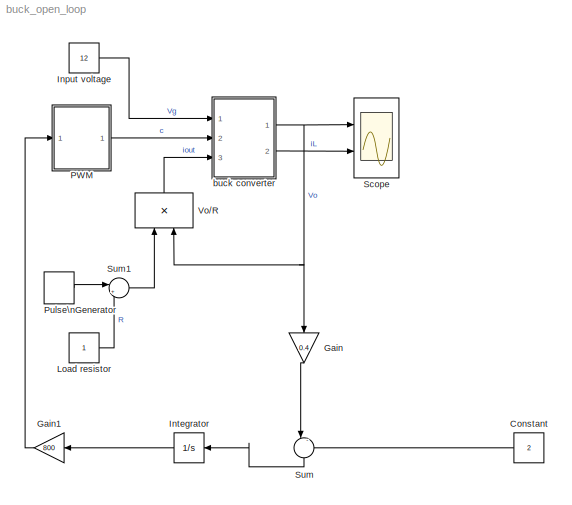
MODEL buck_open_loop
KIND model
BLOCK [Constant] Constant
  SID = 45
  Value = 2
BLOCK [Gain] Gain
  Gain = 0.4
  OutDataTypeStr = Inherit: Inherit via internal rule
  ParamDataTypeStr = Inherit: Inherit via internal rule
  SID = 43
  SaturateOnIntegerOverflow = off
BLOCK [Gain] Gain1
  Gain = 800
  OutDataTypeStr = Inherit: Inherit via internal rule
  ParamDataTypeStr = Inherit: Inherit via internal rule
  SID = 44
  SaturateOnIntegerOverflow = off
BLOCK [Constant] Input voltage
  SID = 2
  Value = 12
BLOCK [Integrator] Integrator
  Ports = [1, 1]
  SID = 46
BLOCK [Constant] Load resistor
  SID = 3
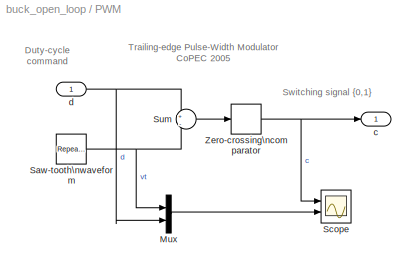
BLOCK [SubSystem] PWM
  Ports = [1, 1]
  RequestExecContextInheritance = off
  SID = 4
  Variant = off
BLOCK [Mux] PWM/Mux
  DisplayOption = bar
  Inputs = 2
  Ports = [2, 1]
  SID = 6
BLOCK [Reference] PWM/Saw-tooth\nwaveform  REF=simulink/Sources/Repeating\nSequence
  Ports = [0, 1]
  SID = 7
  SourceBlock = simulink/Sources/Repeating\nSequence
  SourceProductBaseCode = SL
  SourceProductName = Simulink
  SourceType = Repeating table
  rep_seq_t = [0 0.001e-5 1e-5]
  rep_seq_y = [1 0 1]
BLOCK [Scope] PWM/Scope
  NumInputPorts = 2
  Ports = [2]
  SID = 8
  ScopeSpecificationString = C++SS(StrPVP('Location','[370, 289, 797, 621]'),StrPVP('Open','off'),StrPVP('TickLabels','OneTimeTick'),StrPVP('ZoomMode','xonly'),MxPVP('AxesTitles',53,'struct(''axes1'',''%<SignalLabel>'',''axes2'',''%<SignalLabel>'')'),StrPVP('Grid','on'),StrPVP('TimeRange','auto'),StrPVP('YMin','0~0'),StrPVP('YMax','1.5~1.5'),StrPVP('SaveToWorkspace','off'),StrPVP('SaveName','ScopeData1'),StrPVP('DataFormat','...<+181ch>
BLOCK [Sum] PWM/Sum
  IconShape = round
  Inputs = +|-
  Ports = [2, 1]
  SID = 9
BLOCK [Relay] PWM/Zero-crossing\ncomparator
  SID = 10
BLOCK [Outport] PWM/c
  IconDisplay = Port number
  SID = 11
BLOCK [Inport] PWM/d
  IconDisplay = Port number
  SID = 5
BLOCK [DiscretePulseGenerator] Pulse\nGenerator
  Period = 0.002
  Ports = [0, 1]
  PulseType = Time based
  PulseWidth = 50
  SID = 48
BLOCK [Scope] Scope
  NumInputPorts = 2
  Ports = [2]
  SID = 16
  ScopeSpecificationString = Simulink.scopes.TimeScopeBlockCfg('CurrentConfiguration', extmgr.ConfigurationSet(extmgr.Configuration('Core','General UI',true),extmgr.Configuration('Core','Source UI',true),extmgr.Configuration('Sources','WiredSimulink',true,'DataLoggingSaveFormat','StructureWithTime','DataLoggingDecimation','1','DataLoggingDecimateData',true),extmgr.Configuration('Visuals','Time Domain',true,'SerializedDisplays...<+3033ch>
BLOCK [Sum] Sum
  IconShape = round
  InputSameDT = off
  Inputs = |-+
  OutDataTypeStr = Inherit: Inherit via internal rule
  Ports = [2, 1]
  SID = 47
  SaturateOnIntegerOverflow = off
BLOCK [Sum] Sum1
  IconShape = round
  InputSameDT = off
  Inputs = |++
  OutDataTypeStr = Inherit: Inherit via internal rule
  Ports = [2, 1]
  SID = 50
  SaturateOnIntegerOverflow = off
BLOCK [Product] Vo//R
  Inputs = /*
  Ports = [2, 1]
  SID = 17
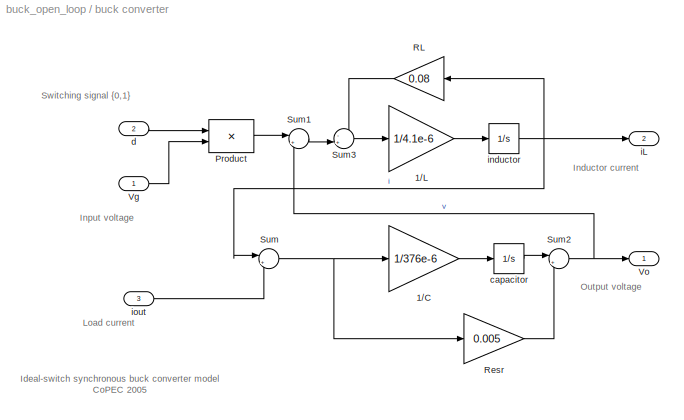
BLOCK [SubSystem] buck converter
  Ports = [3, 2]
  RequestExecContextInheritance = off
  SID = 18
  Variant = off
BLOCK [Gain] buck converter/1//C
  Gain = 1/376e-6
  SID = 22
BLOCK [Gain] buck converter/1//L
  Gain = 1/4.1e-6
  SID = 23
BLOCK [Product] buck converter/Product
  Ports = [2, 1]
  SID = 24
BLOCK [Gain] buck converter/RL
  Gain = 0.08
  SID = 25
BLOCK [Gain] buck converter/Resr
  Gain = 0.005
  SID = 26
BLOCK [Sum] buck converter/Sum
  IconShape = round
  Inputs = |+-
  Ports = [2, 1]
  SID = 27
BLOCK [Sum] buck converter/Sum1
  IconShape = round
  Inputs = |+-
  Ports = [2, 1]
  SID = 28
BLOCK [Sum] buck converter/Sum2
  IconShape = round
  Inputs = |++
  Ports = [2, 1]
  SID = 29
BLOCK [Sum] buck converter/Sum3
  IconShape = round
  Inputs = -+|
  Ports = [2, 1]
  SID = 30
BLOCK [Inport] buck converter/Vg
  IconDisplay = Port number
  SID = 19
BLOCK [Outport] buck converter/Vo
  IconDisplay = Port number
  SID = 33
BLOCK [Integrator] buck converter/capacitor
  Ports = [1, 1]
  SID = 31
BLOCK [Inport] buck converter/d
  IconDisplay = Port number
  Port = 2
  SID = 20
BLOCK [Outport] buck converter/iL
  IconDisplay = Port number
  Port = 2
  SID = 34
BLOCK [Integrator] buck converter/inductor
  Ports = [1, 1]
  SID = 32
BLOCK [Inport] buck converter/iout
  IconDisplay = Port number
  Port = 3
  SID = 21
ANNOTATION PWM: Duty-cycle \ncommand
ANNOTATION PWM: Switching signal {0,1}
ANNOTATION PWM: Trailing-edge Pulse-Width Modulator\nCoPEC 2005
ANNOTATION buck converter: Ideal-switch synchronous buck converter model\nCoPEC 2005
ANNOTATION buck converter: Inductor current
ANNOTATION buck converter: Input voltage
ANNOTATION buck converter: Load current
ANNOTATION buck converter: Output voltage
ANNOTATION buck converter: Switching signal {0,1}
LINE Constant:1 -> Sum:2
LINE Gain1:1 -> PWM:1
LINE Gain:1 -> Sum:1
LINE Input voltage:1 -> buck converter:1
LINE Integrator:1 -> Gain1:1
LINE Load resistor:1 -> Sum1:2
LINE PWM/Mux:1 -> PWM/Scope:2
NET PWM/Saw-tooth\nwaveform:1 -> PWM/Mux:1, PWM/Sum:2
LINE PWM/Sum:1 -> PWM/Zero-crossing\ncomparator:1
NET PWM/Zero-crossing\ncomparator:1 -> PWM/Scope:1, PWM/c:1
NET PWM/d:1 -> PWM/Mux:2, PWM/Sum:1
LINE PWM:1 -> buck converter:2
LINE Pulse\nGenerator:1 -> Sum1:1
LINE Sum1:1 -> Vo//R:1
LINE Sum:1 -> Integrator:1
LINE Vo//R:1 -> buck converter:3
LINE buck converter/1//C:1 -> buck converter/capacitor:1
LINE buck converter/1//L:1 -> buck converter/inductor:1
LINE buck converter/Product:1 -> buck converter/Sum1:1
LINE buck converter/RL:1 -> buck converter/Sum3:1
LINE buck converter/Resr:1 -> buck converter/Sum2:2
LINE buck converter/Sum1:1 -> buck converter/Sum3:2
NET buck converter/Sum2:1 -> buck converter/Sum1:2, buck converter/Vo:1
LINE buck converter/Sum3:1 -> buck converter/1//L:1
NET buck converter/Sum:1 -> buck converter/1//C:1, buck converter/Resr:1
LINE buck converter/Vg:1 -> buck converter/Product:2
LINE buck converter/capacitor:1 -> buck converter/Sum2:1
LINE buck converter/d:1 -> buck converter/Product:1
NET buck converter/inductor:1 -> buck converter/RL:1, buck converter/Sum:1, buck converter/iL:1
LINE buck converter/iout:1 -> buck converter/Sum:2
NET buck converter:1 -> Gain:1, Scope:1, Vo//R:2
LINE buck converter:2 -> Scope:2
note: NET lines group one-source signal fan-out (src -> all destinations, sorted); 1:1 wires keep LINE
